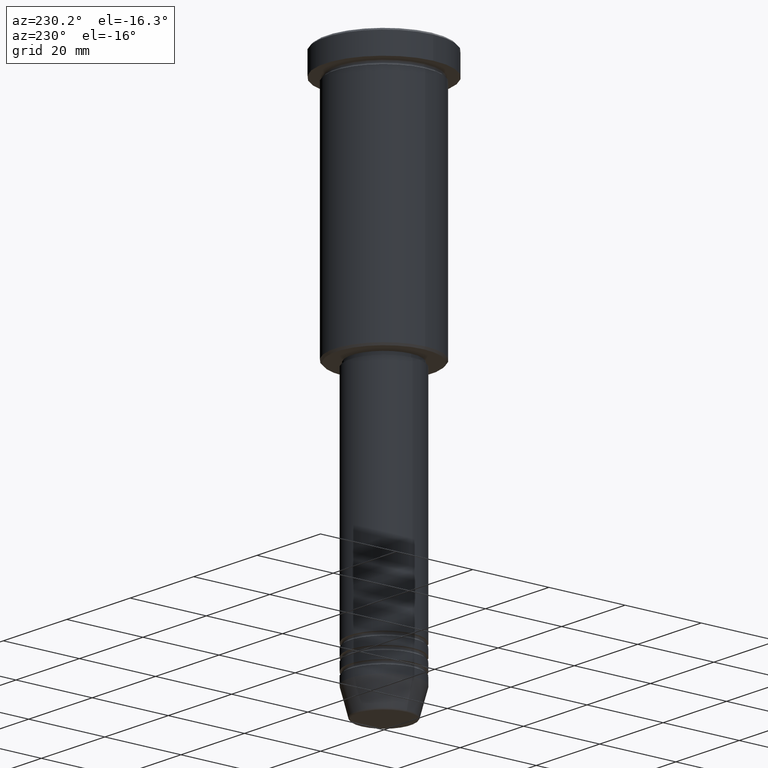
[diagram: clean part render]
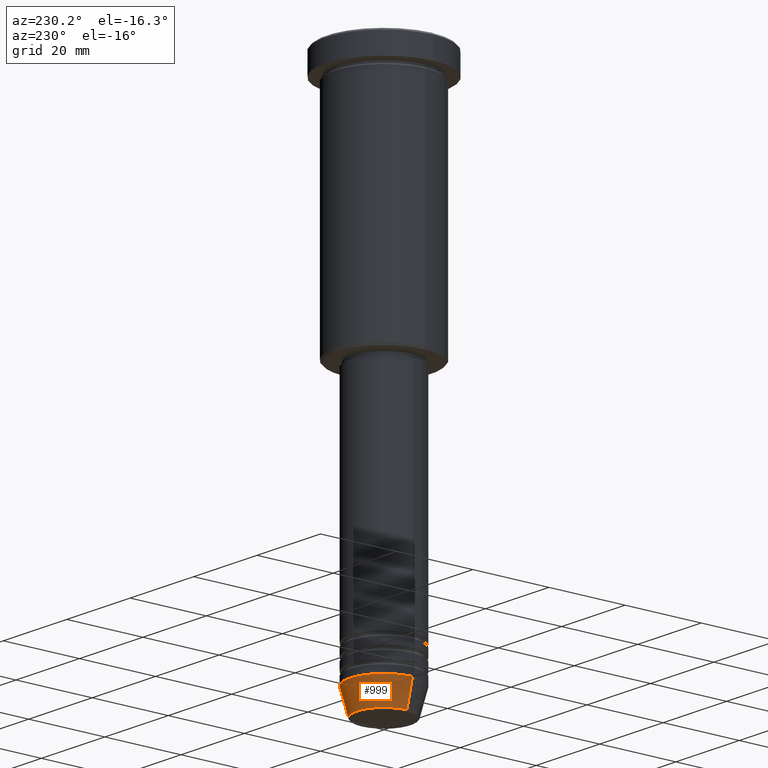
[diagram: same view with one face highlighted and labeled with its STEP entity id]
A machine part, auxiliary view. The second image highlights one B-rep face of the part: STEP entity #999.
In plain terms, the highlighted conical surface has half-angle 15 deg.
Its self-contained STEP definition (entity closure, byte-faithful):
#9 = VERTEX_POINT ( 'NONE', #362 ) ;
#15 = AXIS2_PLACEMENT_3D ( 'NONE', #184, #807, #812 ) ;
#68 = DIRECTION ( 'NONE',  ( 0.2588190451025213501, 0.000000000000000000, 0.9659258262890680902 ) ) ;
#81 = CARTESIAN_POINT ( 'NONE',  ( 9.000000000000000000, 0.000000000000000000, -134.0000000000000000 ) ) ;
#99 = CARTESIAN_POINT ( 'NONE',  ( 0.000000000000000000, 0.000000000000000000, -134.0000000000000000 ) ) ;
#174 = FACE_OUTER_BOUND ( 'NONE', #842, .T. ) ;
#184 = CARTESIAN_POINT ( 'NONE',  ( 0.000000000000000000, 0.000000000000000000, -134.0000000000000000 ) ) ;
#193 = VECTOR ( 'NONE', #277, 1000.000000000000000 ) ;
#228 = VERTEX_POINT ( 'NONE', #737 ) ;
#247 = LINE ( 'NONE', #81, #1057 ) ;
#277 = DIRECTION ( 'NONE',  ( -0.2588190451025213501, 3.169619151431772337E-17, 0.9659258262890680902 ) ) ;
#351 = CIRCLE ( 'NONE', #1014, 9.000000000000000000 ) ;
#362 = CARTESIAN_POINT ( 'NONE',  ( 9.000000000000000000, 0.000000000000000000, -134.0000000000000000 ) ) ;
#408 = AXIS2_PLACEMENT_3D ( 'NONE', #601, #622, #988 ) ;
#441 = ORIENTED_EDGE ( 'NONE', *, *, #953, .F. ) ;
#482 = DIRECTION ( 'NONE',  ( -0.000000000000000000, -0.000000000000000000, 1.000000000000000000 ) ) ;
#601 = CARTESIAN_POINT ( 'NONE',  ( 0.000000000000000000, 0.000000000000000000, -140.6294095225512990 ) ) ;
#622 = DIRECTION ( 'NONE',  ( -0.000000000000000000, -0.000000000000000000, 1.000000000000000000 ) ) ;
#733 = CARTESIAN_POINT ( 'NONE',  ( -9.000000000000000000, 1.102182119232617714E-15, -134.0000000000000000 ) ) ;
#737 = CARTESIAN_POINT ( 'NONE',  ( -7.223655072137189492, 9.934123627281765110E-16, -140.6294095225512990 ) ) ;
#747 = LINE ( 'NONE', #733, #193 ) ;
#751 = ORIENTED_EDGE ( 'NONE', *, *, #1113, .T. ) ;
#807 = DIRECTION ( 'NONE',  ( -0.000000000000000000, -0.000000000000000000, 1.000000000000000000 ) ) ;
#812 = DIRECTION ( 'NONE',  ( 1.000000000000000000, 0.000000000000000000, 0.000000000000000000 ) ) ;
#826 = DIRECTION ( 'NONE',  ( 1.000000000000000000, 0.000000000000000000, 0.000000000000000000 ) ) ;
#837 = CONICAL_SURFACE ( 'NONE', #15, 9.000000000000000000, 0.2617993877991500740 ) ;
#842 = EDGE_LOOP ( 'NONE', ( #1064, #751, #1039, #441 ) ) ;
#876 = EDGE_CURVE ( 'NONE', #1174, #228, #1133, .T. ) ;
#910 = CARTESIAN_POINT ( 'NONE',  ( 7.223655072137188604, 0.000000000000000000, -140.6294095225512990 ) ) ;
#929 = VERTEX_POINT ( 'NONE', #996 ) ;
#953 = EDGE_CURVE ( 'NONE', #1174, #9, #247, .T. ) ;
#988 = DIRECTION ( 'NONE',  ( 1.000000000000000000, 0.000000000000000000, 0.000000000000000000 ) ) ;
#996 = CARTESIAN_POINT ( 'NONE',  ( -9.000000000000000000, 1.102182119232617714E-15, -134.0000000000000000 ) ) ;
#999 = ADVANCED_FACE ( 'NONE', ( #174 ), #837, .T. ) ;
#1014 = AXIS2_PLACEMENT_3D ( 'NONE', #99, #482, #826 ) ;
#1039 = ORIENTED_EDGE ( 'NONE', *, *, #1123, .F. ) ;
#1057 = VECTOR ( 'NONE', #68, 1000.000000000000000 ) ;
#1064 = ORIENTED_EDGE ( 'NONE', *, *, #876, .T. ) ;
#1113 = EDGE_CURVE ( 'NONE', #228, #929, #747, .T. ) ;
#1123 = EDGE_CURVE ( 'NONE', #9, #929, #351, .T. ) ;
#1133 = CIRCLE ( 'NONE', #408, 7.223655072137188604 ) ;
#1174 = VERTEX_POINT ( 'NONE', #910 ) ;